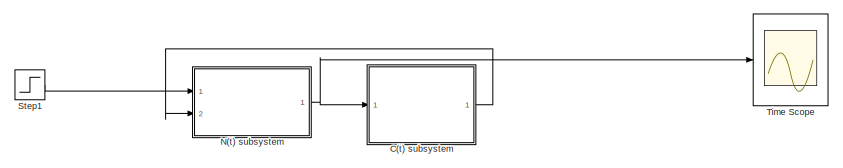
[diagram: root canvas - part 1/3, top right region]
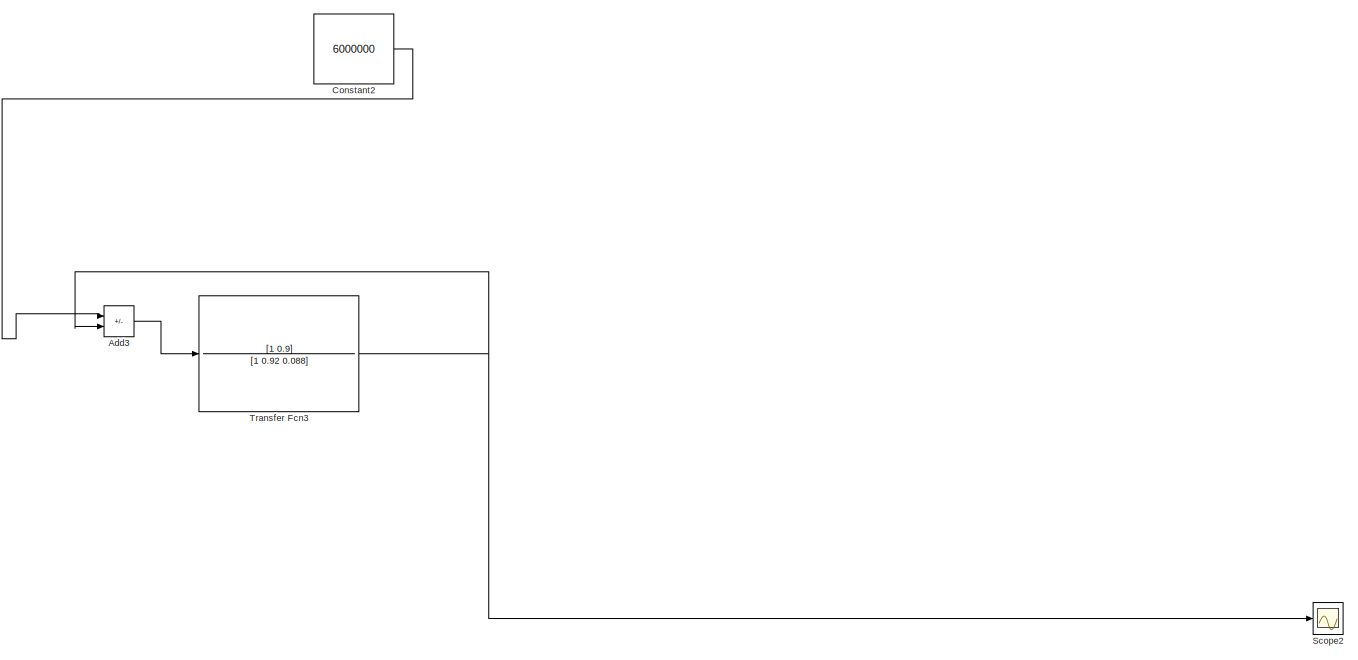
[diagram: root canvas - part 2/3, middle left region]
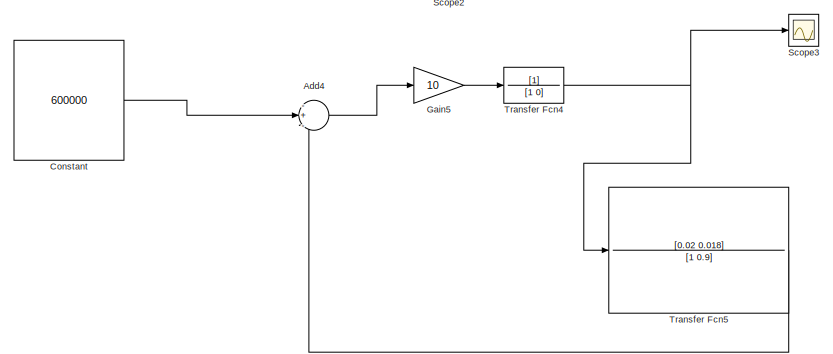
[diagram: root canvas - part 3/3, bottom center region]
MODEL slx_f9a347df3fc9
KIND model
CONFIG AbsTol = auto
CONFIG EnableMultiTasking = off
CONFIG FixedStep = auto
CONFIG MaxStep = auto
CONFIG MinStep = auto
CONFIG RelTol = 1e-3
CONFIG SampleTimeConstraint = Unconstrained
CONFIG SolverName = VariableStepAuto
CONFIG StartTime = 0.0
CONFIG StopTime = 10
BLOCK [Sum] Add3
  IconShape = rectangular
  Inputs = +-
  Ports = [2, 1]
BLOCK [Sum] Add4
  Inputs = -+-
  Ports = [3, 1]
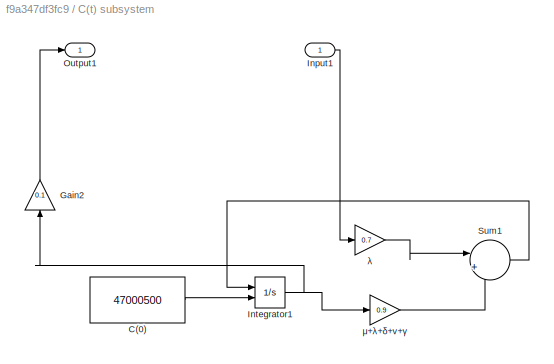
BLOCK [SubSystem] C(t) subsystem 
  Ports = [1, 1]
  RequestExecContextInheritance = off
BLOCK [Constant] C(t) subsystem /C(0)
  Value = 47000500
BLOCK [Gain] C(t) subsystem /Gain2
  Gain = 0.1
  NameLocation = right
BLOCK [Inport] C(t) subsystem /Input1
BLOCK [Integrator] C(t) subsystem /Integrator1
  InitialConditionSource = external
  Ports = [2, 1]
BLOCK [Outport] C(t) subsystem /Output1
BLOCK [Sum] C(t) subsystem /Sum1
  Inputs = |+-
  Ports = [2, 1]
BLOCK [Gain] C(t) subsystem /λ
  Gain = 0.7
BLOCK [Gain] C(t) subsystem /μ+λ+δ+v+γ
  Gain = 0.9
BLOCK [Constant] Constant
  Value = 600000
BLOCK [Constant] Constant2
  Value = 6000000
BLOCK [Gain] Gain5
  Gain = 10
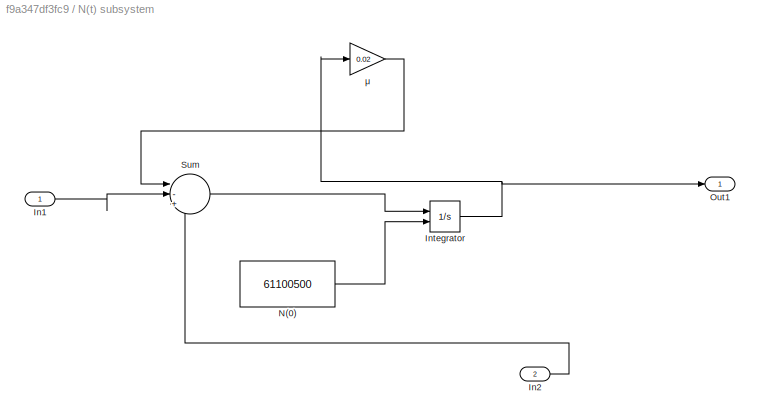
BLOCK [SubSystem] N(t) subsystem
  Ports = [2, 1]
  RequestExecContextInheritance = off
BLOCK [Inport] N(t) subsystem/In1
BLOCK [Inport] N(t) subsystem/In2
  Port = 2
BLOCK [Integrator] N(t) subsystem/Integrator
  InitialConditionSource = external
  Ports = [2, 1]
BLOCK [Constant] N(t) subsystem/N(0)
  Value = 61100500
BLOCK [Outport] N(t) subsystem/Out1
BLOCK [Sum] N(t) subsystem/Sum
  Inputs = |-+-
  Ports = [3, 1]
BLOCK [Gain] N(t) subsystem/μ
  Gain = 0.02
BLOCK [Scope] Scope2
  Floating = off
  NumInputPorts = 1
  Ports = [1]
  ScopeSpecificationString = Simulink.scopes.TimeScopeBlockCfg('CurrentConfiguration', extmgr.ConfigurationSet(extmgr.Configuration('Core','General UI',true),extmgr.Configuration('Core','Source UI',true),extmgr.Configuration('Sources','WiredSimulink',true,'DataLoggingVariableName','ScopeData3'),extmgr.Configuration('Visuals','Time Domain',true,'SerializedDisplays',{struct('MinYLimReal','-684551.92661','MaxYLimReal','6160967.3...<+1441ch>
BLOCK [Scope] Scope3
  Floating = off
  NumInputPorts = 1
  Ports = [1]
  ScopeSpecificationString = Simulink.scopes.TimeScopeBlockCfg('CurrentConfiguration', extmgr.ConfigurationSet(extmgr.Configuration('Core','General UI',true),extmgr.Configuration('Core','Source UI',true),extmgr.Configuration('Sources','WiredSimulink',true,'DataLoggingVariableName','ScopeData4'),extmgr.Configuration('Visuals','Time Domain',true,'SerializedDisplays',{struct('MinYLimReal','-3242492.68784','MaxYLimReal','29182434...<+1754ch>
BLOCK [Step] Step1
  After = 6000000
  SampleTime = 0
  Time = 0
BLOCK [Scope] Time Scope
  DefaultConfigurationName = spbscopes.TimeScopeBlockCfg
  Floating = off
  NumInputPorts = 1
  Ports = [1]
  ScopeSpecificationString = spbscopes.TimeScopeBlockCfg('CurrentConfiguration', extmgr.ConfigurationSet(extmgr.Configuration('Core','General UI',true,'FigureColor',[0.156862745098039 0.156862745098039 0.156862745098039]),extmgr.Configuration('Core','Source UI',true),extmgr.Configuration('Sources','WiredSimulink',true,'DataLoggingVariableName','ScopeData1'),extmgr.Configuration('Visuals','Time Domain',true,'DisplayPropertyDef...<+2029ch>
  UserDataPersistent = on
BLOCK [TransferFcn] Transfer Fcn3
  Denominator = [1 0.92 0.088]
  Numerator = [1 0.9]
BLOCK [TransferFcn] Transfer Fcn4
  Denominator = [1 0]
BLOCK [TransferFcn] Transfer Fcn5
  Denominator = [1 0.9]
  Numerator = [0.02 0.018]
LINE Add3:1 -> Transfer Fcn3:1
LINE Add4:1 -> Gain5:1
LINE C(t) subsystem /C(0):1 -> C(t) subsystem /Integrator1:2
LINE C(t) subsystem /Gain2:1 -> C(t) subsystem /Output1:1
LINE C(t) subsystem /Input1:1 -> C(t) subsystem /λ:1
NET C(t) subsystem /Integrator1:1 -> C(t) subsystem /Gain2:1, C(t) subsystem /μ+λ+δ+v+γ:1
LINE C(t) subsystem /Sum1:1 -> C(t) subsystem /Integrator1:1
LINE C(t) subsystem /λ:1 -> C(t) subsystem /Sum1:1
LINE C(t) subsystem /μ+λ+δ+v+γ:1 -> C(t) subsystem /Sum1:2
LINE C(t) subsystem :1 -> N(t) subsystem:2
LINE Constant2:1 -> Add3:1
LINE Constant:1 -> Add4:2
LINE Gain5:1 -> Transfer Fcn4:1
LINE N(t) subsystem/In1:1 -> N(t) subsystem/Sum:2
LINE N(t) subsystem/In2:1 -> N(t) subsystem/Sum:3
NET N(t) subsystem/Integrator:1 -> N(t) subsystem/Out1:1, N(t) subsystem/μ:1
LINE N(t) subsystem/N(0):1 -> N(t) subsystem/Integrator:2
LINE N(t) subsystem/Sum:1 -> N(t) subsystem/Integrator:1
LINE N(t) subsystem/μ:1 -> N(t) subsystem/Sum:1
NET N(t) subsystem:1 -> C(t) subsystem :1, Time Scope:1
LINE Step1:1 -> N(t) subsystem:1
NET Transfer Fcn3:1 -> Add3:2, Scope2:1
NET Transfer Fcn4:1 -> Scope3:1, Transfer Fcn5:1
LINE Transfer Fcn5:1 -> Add4:3
note: NET lines group one-source signal fan-out (src -> all destinations, sorted); 1:1 wires keep LINE
